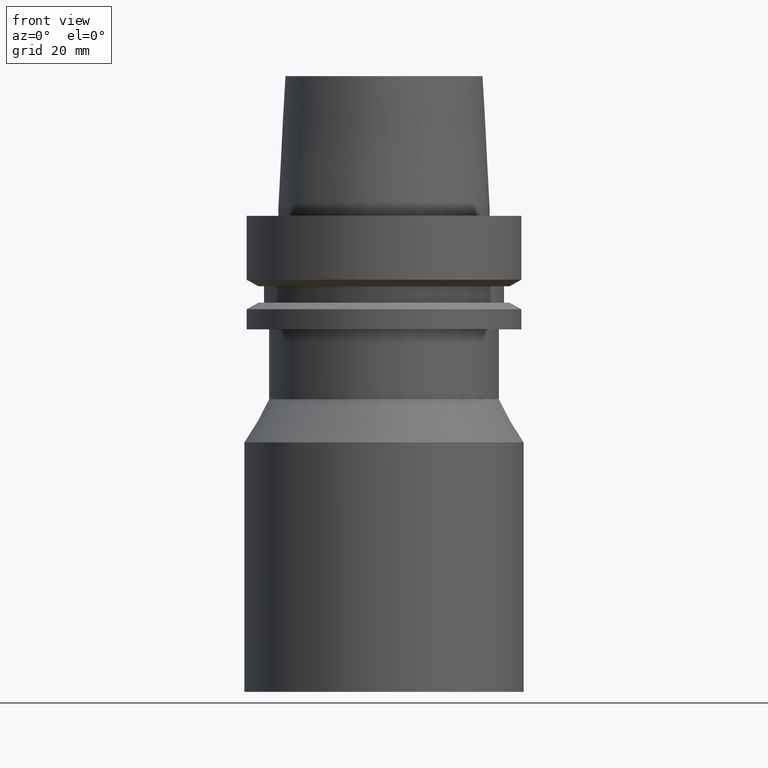
[diagram: clean part render]
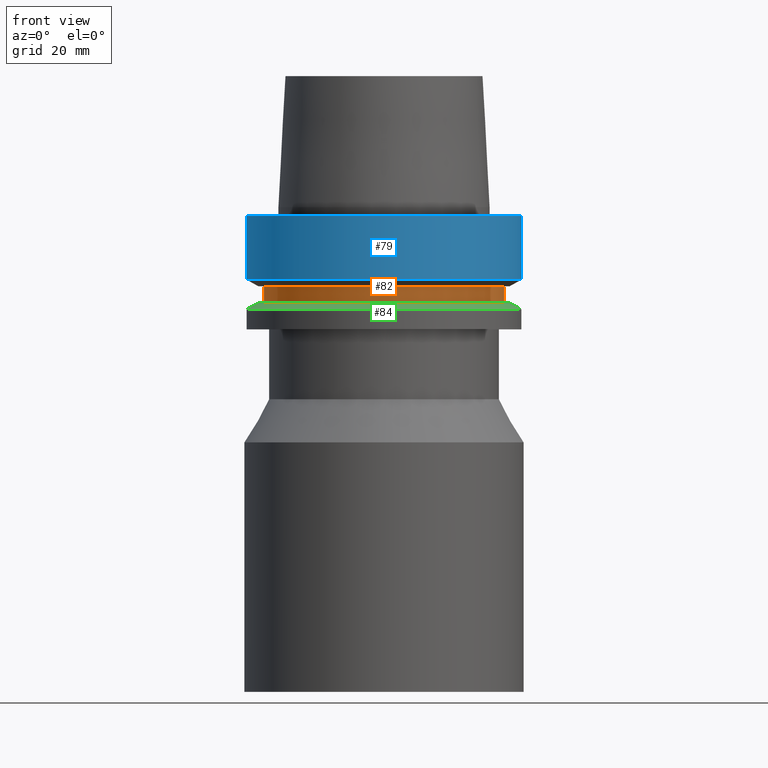
[diagram: same view with three faces highlighted in distinct colors, each labeled with its STEP entity id]
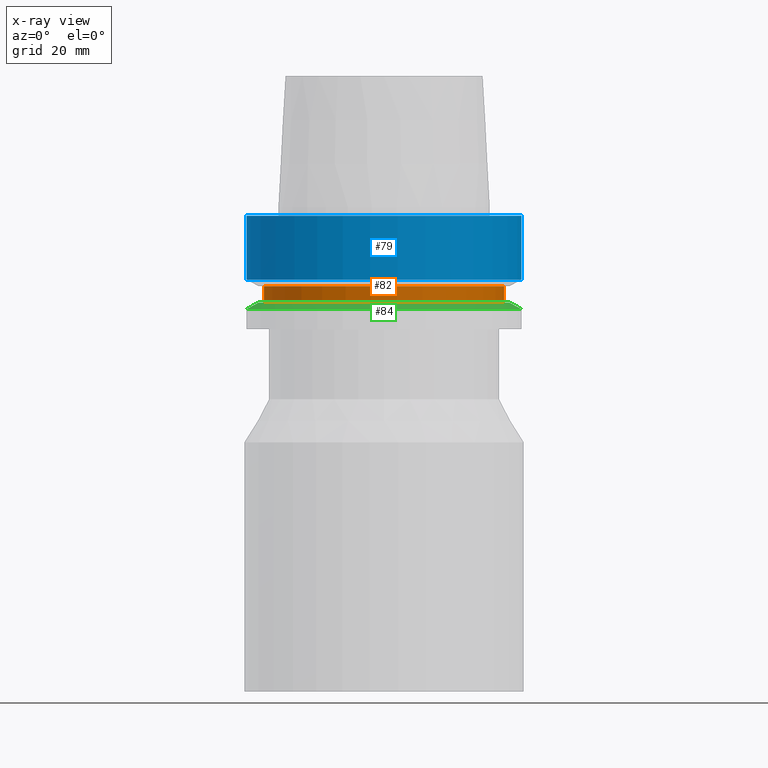
[diagram: x-ray of the same camera — body ghosted, the three highlighted faces saturated]
A machine part, front view with three faces highlighted in distinct colors.
The next image is the same camera in x-ray (body ghosted, the three faces saturated) — at least one of them is partly hidden behind the body in this view.
Their STEP definitions:

[orange] entity #82 — the highlighted cylindrical surface (bore or boss wall) has radius 27.5 mm, axis along (-0, -0, 1).
#82=ADVANCED_FACE('',(#112,#113),#114,.T.);
#112=FACE_BOUND('',#158,.T.);
#113=FACE_BOUND('',#159,.T.);
#114=CYLINDRICAL_SURFACE('',#160,27.5);
#158=EDGE_LOOP('',(#218));
#159=EDGE_LOOP('',(#219));
#160=AXIS2_PLACEMENT_3D('',#220,#221,#222);
#218=ORIENTED_EDGE('',*,*,#269,.F.);
#219=ORIENTED_EDGE('',*,*,#268,.T.);
#220=CARTESIAN_POINT('',(1.10218211923262E-015,2.20436423846524E-015,-18.0));
#221=DIRECTION('',(-6.12323399573677E-017,-1.22464679914735E-016,1.0));
#222=DIRECTION('',(-1.23259516440783E-032,1.0,1.22464679914735E-016));
#268=EDGE_CURVE('',#289,#289,#290,.T.);
#269=EDGE_CURVE('',#291,#291,#292,.T.);
#289=VERTEX_POINT('',#319);
#290=CIRCLE('',#320,27.5);
#291=VERTEX_POINT('',#321);
#292=CIRCLE('',#322,27.5);
#319=CARTESIAN_POINT('',(9.87371481812553E-016,27.5,-16.125));
#320=AXIS2_PLACEMENT_3D('',#355,#356,#357);
#321=CARTESIAN_POINT('',(1.21699275665268E-015,27.5,-19.875));
#322=AXIS2_PLACEMENT_3D('',#358,#359,#360);
#355=CARTESIAN_POINT('',(9.87371481812554E-016,1.97474296362511E-015,-16.125));
#356=DIRECTION('',(6.12323399573677E-017,1.22464679914735E-016,-1.0));
#357=DIRECTION('',(-1.23259516440783E-032,1.0,1.22464679914735E-016));
#358=CARTESIAN_POINT('',(1.21699275665268E-015,2.43398551330536E-015,-19.875));
#359=DIRECTION('',(6.12323399573677E-017,1.22464679914735E-016,-1.0));
#360=DIRECTION('',(-1.23259516440783E-032,1.0,1.22464679914735E-016));

[blue] entity #79 — the highlighted cylindrical surface (bore or boss wall) has radius 31.5 mm, axis along (-0, -0, 1).
#79=ADVANCED_FACE('',(#103,#104),#105,.T.);
#103=FACE_BOUND('',#149,.T.);
#104=FACE_BOUND('',#150,.T.);
#105=CYLINDRICAL_SURFACE('',#151,31.5);
#149=EDGE_LOOP('',(#203));
#150=EDGE_LOOP('',(#204));
#151=AXIS2_PLACEMENT_3D('',#205,#206,#207);
#203=ORIENTED_EDGE('',*,*,#266,.F.);
#204=ORIENTED_EDGE('',*,*,#265,.T.);
#205=CARTESIAN_POINT('',(4.47684973986342E-016,8.95369947972685E-016,-7.311250465));
#206=DIRECTION('',(-6.12323399573677E-017,-1.22464679914735E-016,1.0));
#207=DIRECTION('',(-1.23259516440783E-032,1.0,1.22464679914735E-016));
#265=EDGE_CURVE('',#283,#283,#284,.T.);
#266=EDGE_CURVE('',#285,#285,#286,.T.);
#283=VERTEX_POINT('',#313);
#284=CIRCLE('',#314,31.5);
#285=VERTEX_POINT('',#315);
#286=CIRCLE('',#316,31.5);
#313=CARTESIAN_POINT('',(-3.88267476788467E-031,31.5,3.85763741731416E-015));
#314=AXIS2_PLACEMENT_3D('',#346,#347,#348);
#315=CARTESIAN_POINT('',(8.95369947972684E-016,31.5,-14.62250093));
#316=AXIS2_PLACEMENT_3D('',#349,#350,#351);
#346=CARTESIAN_POINT('',(0.0,0.0,0.0));
#347=DIRECTION('',(6.12323399573677E-017,1.22464679914735E-016,-1.0));
#348=DIRECTION('',(-1.23259516440783E-032,1.0,1.22464679914735E-016));
#349=CARTESIAN_POINT('',(8.95369947972685E-016,1.79073989594537E-015,-14.62250093));
#350=DIRECTION('',(6.12323399573677E-017,1.22464679914735E-016,-1.0));
#351=DIRECTION('',(-1.23259516440783E-032,1.0,1.22464679914735E-016));

[green] entity #84 — the highlighted conical surface has half-angle 60 deg.
#84=ADVANCED_FACE('',(#118,#119),#120,.T.);
#118=FACE_BOUND('',#164,.T.);
#119=FACE_BOUND('',#165,.T.);
#120=CONICAL_SURFACE('',#166,30.19879763,1.04719755326565);
#164=EDGE_LOOP('',(#228));
#165=EDGE_LOOP('',(#229));
#166=AXIS2_PLACEMENT_3D('',#230,#231,#232);
#228=ORIENTED_EDGE('',*,*,#271,.F.);
#229=ORIENTED_EDGE('',*,*,#270,.T.);
#230=CARTESIAN_POINT('',(1.26299352357262E-015,2.52598704714523E-015,-20.626249535));
#231=DIRECTION('',(6.12323399573677E-017,1.22464679914735E-016,-1.0));
#232=DIRECTION('',(-1.23259516440783E-032,1.0,1.22464679914735E-016));
#270=EDGE_CURVE('',#293,#293,#294,.T.);
#271=EDGE_CURVE('',#295,#295,#296,.T.);
#293=VERTEX_POINT('',#323);
#294=CIRCLE('',#324,28.89759526);
#295=VERTEX_POINT('',#325);
#296=CIRCLE('',#326,31.5);
#323=CARTESIAN_POINT('',(1.21699275665268E-015,28.89759526,-19.875));
#324=AXIS2_PLACEMENT_3D('',#361,#362,#363);
#325=CARTESIAN_POINT('',(1.30899429049255E-015,31.5,-21.37749907));
#326=AXIS2_PLACEMENT_3D('',#364,#365,#366);
#361=CARTESIAN_POINT('',(1.21699275665268E-015,2.43398551330536E-015,-19.875));
#362=DIRECTION('',(6.12323399573677E-017,1.22464679914735E-016,-1.0));
#363=DIRECTION('',(-1.23259516440783E-032,1.0,1.22464679914735E-016));
#364=CARTESIAN_POINT('',(1.30899429049255E-015,2.6179885809851E-015,-21.37749907));
#365=DIRECTION('',(6.12323399573677E-017,1.22464679914735E-016,-1.0));
#366=DIRECTION('',(-1.23259516440783E-032,1.0,1.22464679914735E-016));